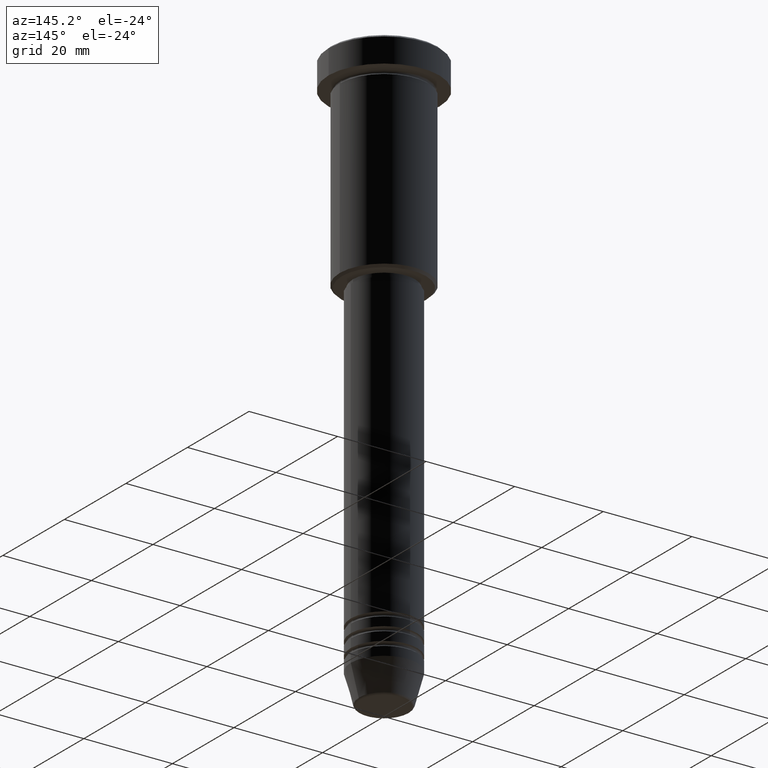
[diagram: clean part render]
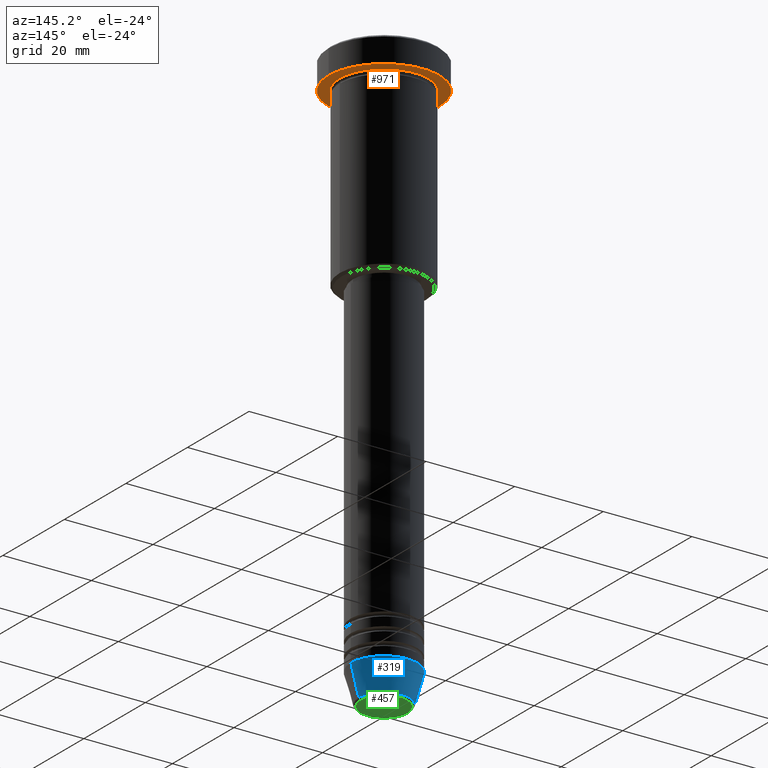
[diagram: same view with three faces highlighted in distinct colors, each labeled with its STEP entity id]
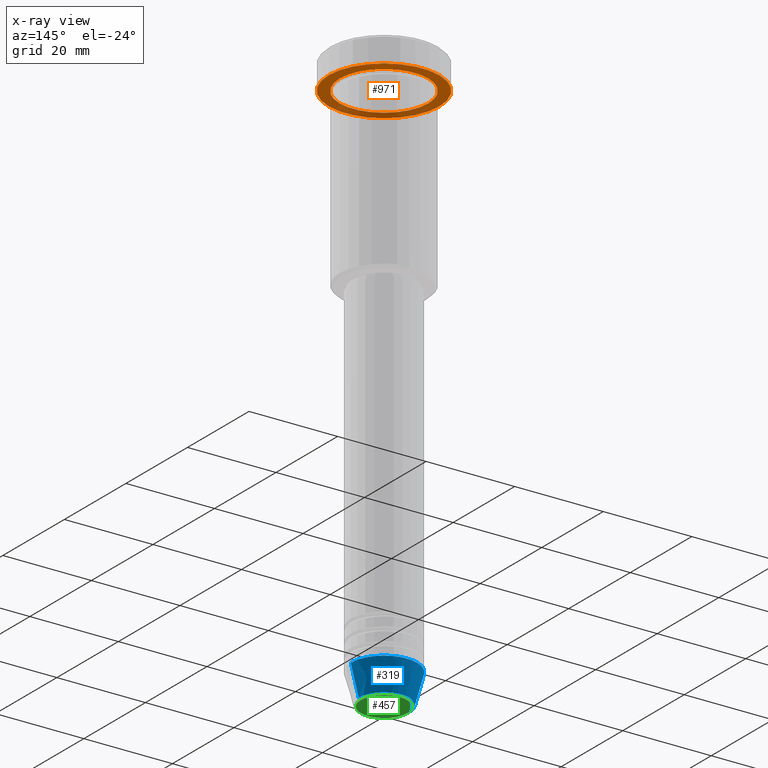
[diagram: x-ray of the same camera — body ghosted, the three highlighted faces saturated]
A machine part, auxiliary view with three faces highlighted in distinct colors.
The next image is the same camera in x-ray (body ghosted, the three faces saturated) — at least one of them is partly hidden behind the body in this view.
Their STEP definitions:

[orange] entity #971 — the highlighted planar face has unit normal (0, 0, -1).
#63 = EDGE_CURVE ( 'NONE', #622, #304, #389, .T. ) ;
#67 = EDGE_CURVE ( 'NONE', #1023, #397, #1055, .T. ) ;
#96 = AXIS2_PLACEMENT_3D ( 'NONE', #743, #388, #287 ) ;
#107 = CARTESIAN_POINT ( 'NONE',  ( -10.00000000000000000, 0.000000000000000000, -5.999999999999996447 ) ) ;
#136 = CARTESIAN_POINT ( 'NONE',  ( 0.000000000000000000, 0.000000000000000000, -5.999999999999996447 ) ) ;
#164 = PLANE ( 'NONE',  #1040 ) ;
#168 = CARTESIAN_POINT ( 'NONE',  ( 0.000000000000000000, 12.50000000000000000, -5.999999999999996447 ) ) ;
#245 = DIRECTION ( 'NONE',  ( -0.000000000000000000, -0.000000000000000000, 1.000000000000000000 ) ) ;
#258 = DIRECTION ( 'NONE',  ( -1.000000000000000000, 0.000000000000000000, -0.000000000000000000 ) ) ;
#287 = DIRECTION ( 'NONE',  ( 1.000000000000000000, 0.000000000000000000, 0.000000000000000000 ) ) ;
#304 = VERTEX_POINT ( 'NONE', #1113 ) ;
#315 = AXIS2_PLACEMENT_3D ( 'NONE', #136, #786, #429 ) ;
#356 = FACE_BOUND ( 'NONE', #403, .T. ) ;
#361 = AXIS2_PLACEMENT_3D ( 'NONE', #555, #392, #1111 ) ;
#388 = DIRECTION ( 'NONE',  ( -0.000000000000000000, -0.000000000000000000, 1.000000000000000000 ) ) ;
#389 = CIRCLE ( 'NONE', #315, 12.50000000000000000 ) ;
#392 = DIRECTION ( 'NONE',  ( -0.000000000000000000, -0.000000000000000000, 1.000000000000000000 ) ) ;
#397 = VERTEX_POINT ( 'NONE', #417 ) ;
#403 = EDGE_LOOP ( 'NONE', ( #804, #411 ) ) ;
#411 = ORIENTED_EDGE ( 'NONE', *, *, #1068, .T. ) ;
#417 = CARTESIAN_POINT ( 'NONE',  ( 10.00000000000000000, 1.224646799147353256E-15, -5.999999999999996447 ) ) ;
#429 = DIRECTION ( 'NONE',  ( 1.000000000000000000, 0.000000000000000000, 0.000000000000000000 ) ) ;
#470 = EDGE_CURVE ( 'NONE', #304, #622, #634, .T. ) ;
#555 = CARTESIAN_POINT ( 'NONE',  ( 0.000000000000000000, 0.000000000000000000, -5.999999999999996447 ) ) ;
#622 = VERTEX_POINT ( 'NONE', #1180 ) ;
#634 = CIRCLE ( 'NONE', #96, 12.50000000000000000 ) ;
#720 = FACE_OUTER_BOUND ( 'NONE', #872, .T. ) ;
#743 = CARTESIAN_POINT ( 'NONE',  ( 0.000000000000000000, 0.000000000000000000, -5.999999999999996447 ) ) ;
#786 = DIRECTION ( 'NONE',  ( -0.000000000000000000, -0.000000000000000000, 1.000000000000000000 ) ) ;
#803 = ORIENTED_EDGE ( 'NONE', *, *, #470, .F. ) ;
#804 = ORIENTED_EDGE ( 'NONE', *, *, #67, .T. ) ;
#872 = EDGE_LOOP ( 'NONE', ( #803, #1110 ) ) ;
#879 = CIRCLE ( 'NONE', #361, 10.00000000000000000 ) ;
#893 = DIRECTION ( 'NONE',  ( -1.000000000000000000, 0.000000000000000000, 0.000000000000000000 ) ) ;
#971 = ADVANCED_FACE ( 'NONE', ( #356, #720 ), #164, .T. ) ;
#975 = CARTESIAN_POINT ( 'NONE',  ( 0.000000000000000000, 0.000000000000000000, -5.999999999999996447 ) ) ;
#981 = AXIS2_PLACEMENT_3D ( 'NONE', #975, #245, #893 ) ;
#1023 = VERTEX_POINT ( 'NONE', #107 ) ;
#1040 = AXIS2_PLACEMENT_3D ( 'NONE', #168, #1076, #258 ) ;
#1055 = CIRCLE ( 'NONE', #981, 10.00000000000000000 ) ;
#1068 = EDGE_CURVE ( 'NONE', #397, #1023, #879, .T. ) ;
#1076 = DIRECTION ( 'NONE',  ( 0.000000000000000000, 0.000000000000000000, -1.000000000000000000 ) ) ;
#1110 = ORIENTED_EDGE ( 'NONE', *, *, #63, .F. ) ;
#1111 = DIRECTION ( 'NONE',  ( -1.000000000000000000, 0.000000000000000000, 0.000000000000000000 ) ) ;
#1113 = CARTESIAN_POINT ( 'NONE',  ( 12.50000000000000000, 0.000000000000000000, -5.999999999999996447 ) ) ;
#1180 = CARTESIAN_POINT ( 'NONE',  ( -12.50000000000000000, 1.530808498934191521E-15, -5.999999999999996447 ) ) ;

[blue] entity #319 — the highlighted conical surface has half-angle 15 deg.
#7 = DIRECTION ( 'NONE',  ( 1.000000000000000000, 0.000000000000000000, 0.000000000000000000 ) ) ;
#9 = DIRECTION ( 'NONE',  ( -0.000000000000000000, -0.000000000000000000, 1.000000000000000000 ) ) ;
#21 = FACE_OUTER_BOUND ( 'NONE', #420, .T. ) ;
#28 = CARTESIAN_POINT ( 'NONE',  ( 7.500000000000000000, 0.000000000000000000, -124.0000000000000000 ) ) ;
#118 = DIRECTION ( 'NONE',  ( 1.000000000000000000, 0.000000000000000000, 0.000000000000000000 ) ) ;
#137 = ORIENTED_EDGE ( 'NONE', *, *, #556, .T. ) ;
#145 = DIRECTION ( 'NONE',  ( -0.000000000000000000, -0.000000000000000000, 1.000000000000000000 ) ) ;
#199 = LINE ( 'NONE', #28, #562 ) ;
#215 = VERTEX_POINT ( 'NONE', #1082 ) ;
#279 = EDGE_CURVE ( 'NONE', #215, #687, #390, .T. ) ;
#284 = CARTESIAN_POINT ( 'NONE',  ( -7.500000000000000000, 9.184850993605147944E-16, -124.0000000000000000 ) ) ;
#319 = ADVANCED_FACE ( 'NONE', ( #21 ), #1093, .T. ) ;
#320 = ORIENTED_EDGE ( 'NONE', *, *, #998, .F. ) ;
#333 = CARTESIAN_POINT ( 'NONE',  ( 0.000000000000000000, 0.000000000000000000, -124.0000000000000000 ) ) ;
#369 = CIRCLE ( 'NONE', #870, 5.723655072137191269 ) ;
#374 = EDGE_CURVE ( 'NONE', #859, #687, #487, .T. ) ;
#390 = CIRCLE ( 'NONE', #541, 7.500000000000000000 ) ;
#420 = EDGE_LOOP ( 'NONE', ( #137, #533, #587, #320 ) ) ;
#459 = DIRECTION ( 'NONE',  ( 1.000000000000000000, 0.000000000000000000, 0.000000000000000000 ) ) ;
#487 = LINE ( 'NONE', #692, #1072 ) ;
#492 = DIRECTION ( 'NONE',  ( 0.2588190451025213501, 0.000000000000000000, 0.9659258262890680902 ) ) ;
#533 = ORIENTED_EDGE ( 'NONE', *, *, #374, .T. ) ;
#541 = AXIS2_PLACEMENT_3D ( 'NONE', #635, #810, #459 ) ;
#552 = CARTESIAN_POINT ( 'NONE',  ( 0.000000000000000000, 0.000000000000000000, -130.6294095225512422 ) ) ;
#556 = EDGE_CURVE ( 'NONE', #1021, #859, #369, .T. ) ;
#562 = VECTOR ( 'NONE', #492, 1000.000000000000000 ) ;
#587 = ORIENTED_EDGE ( 'NONE', *, *, #279, .F. ) ;
#635 = CARTESIAN_POINT ( 'NONE',  ( 0.000000000000000000, 0.000000000000000000, -124.0000000000000000 ) ) ;
#687 = VERTEX_POINT ( 'NONE', #284 ) ;
#692 = CARTESIAN_POINT ( 'NONE',  ( -7.500000000000000000, 9.184850993605147944E-16, -124.0000000000000000 ) ) ;
#754 = CARTESIAN_POINT ( 'NONE',  ( 5.723655072137191269, 0.000000000000000000, -130.6294095225512422 ) ) ;
#770 = AXIS2_PLACEMENT_3D ( 'NONE', #333, #145, #118 ) ;
#810 = DIRECTION ( 'NONE',  ( -0.000000000000000000, -0.000000000000000000, 1.000000000000000000 ) ) ;
#859 = VERTEX_POINT ( 'NONE', #1084 ) ;
#870 = AXIS2_PLACEMENT_3D ( 'NONE', #552, #9, #7 ) ;
#998 = EDGE_CURVE ( 'NONE', #1021, #215, #199, .T. ) ;
#1021 = VERTEX_POINT ( 'NONE', #754 ) ;
#1057 = DIRECTION ( 'NONE',  ( -0.2588190451025213501, 3.169619151431772337E-17, 0.9659258262890680902 ) ) ;
#1072 = VECTOR ( 'NONE', #1057, 1000.000000000000000 ) ;
#1082 = CARTESIAN_POINT ( 'NONE',  ( 7.500000000000000000, 0.000000000000000000, -124.0000000000000000 ) ) ;
#1084 = CARTESIAN_POINT ( 'NONE',  ( -5.723655072137191269, 8.097153428560735915E-16, -130.6294095225512422 ) ) ;
#1093 = CONICAL_SURFACE ( 'NONE', #770, 7.500000000000000000, 0.2617993877991500740 ) ;

[green] entity #457 — the highlighted planar face has unit normal (0, -0, 1).
#32 = DIRECTION ( 'NONE',  ( 1.000000000000000000, 0.000000000000000000, 0.000000000000000000 ) ) ;
#97 = CIRCLE ( 'NONE', #849, 5.240692158992654726 ) ;
#120 = AXIS2_PLACEMENT_3D ( 'NONE', #658, #565, #854 ) ;
#379 = DIRECTION ( 'NONE',  ( 0.000000000000000000, -0.000000000000000000, 1.000000000000000000 ) ) ;
#410 = EDGE_LOOP ( 'NONE', ( #1053, #1042 ) ) ;
#457 = ADVANCED_FACE ( 'NONE', ( #458 ), #638, .F. ) ;
#458 = FACE_OUTER_BOUND ( 'NONE', #410, .T. ) ;
#481 = CARTESIAN_POINT ( 'NONE',  ( 0.000000000000000000, 0.000000000000000000, -131.0000000000000000 ) ) ;
#500 = VERTEX_POINT ( 'NONE', #661 ) ;
#565 = DIRECTION ( 'NONE',  ( 0.000000000000000000, 0.000000000000000000, -1.000000000000000000 ) ) ;
#574 = DIRECTION ( 'NONE',  ( 0.000000000000000000, 0.000000000000000000, -1.000000000000000000 ) ) ;
#638 = PLANE ( 'NONE',  #1147 ) ;
#658 = CARTESIAN_POINT ( 'NONE',  ( 0.000000000000000000, 0.000000000000000000, -131.0000000000000000 ) ) ;
#661 = CARTESIAN_POINT ( 'NONE',  ( -5.240692158992654726, 6.713726370671656487E-16, -131.0000000000000000 ) ) ;
#731 = CARTESIAN_POINT ( 'NONE',  ( 5.240692158992654726, 0.000000000000000000, -131.0000000000000000 ) ) ;
#738 = EDGE_CURVE ( 'NONE', #500, #962, #97, .T. ) ;
#746 = CARTESIAN_POINT ( 'NONE',  ( 0.000000000000000000, 0.000000000000000000, -131.0000000000000000 ) ) ;
#840 = DIRECTION ( 'NONE',  ( 1.000000000000000000, 0.000000000000000000, 0.000000000000000000 ) ) ;
#849 = AXIS2_PLACEMENT_3D ( 'NONE', #481, #574, #32 ) ;
#854 = DIRECTION ( 'NONE',  ( 1.000000000000000000, 0.000000000000000000, 0.000000000000000000 ) ) ;
#962 = VERTEX_POINT ( 'NONE', #731 ) ;
#1001 = EDGE_CURVE ( 'NONE', #962, #500, #1155, .T. ) ;
#1042 = ORIENTED_EDGE ( 'NONE', *, *, #738, .T. ) ;
#1053 = ORIENTED_EDGE ( 'NONE', *, *, #1001, .T. ) ;
#1147 = AXIS2_PLACEMENT_3D ( 'NONE', #746, #379, #840 ) ;
#1155 = CIRCLE ( 'NONE', #120, 5.240692158992654726 ) ;